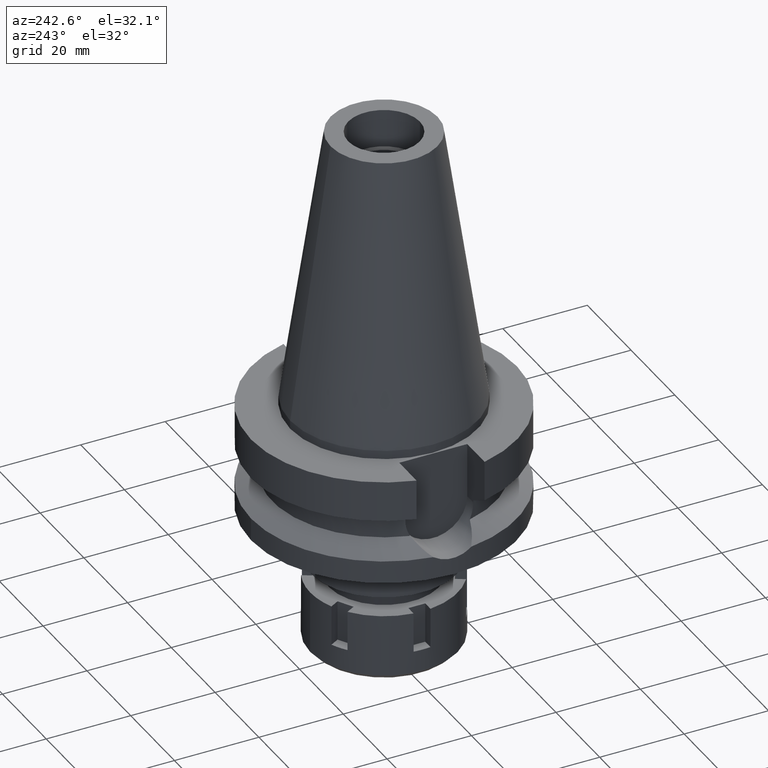
[diagram: clean part render]
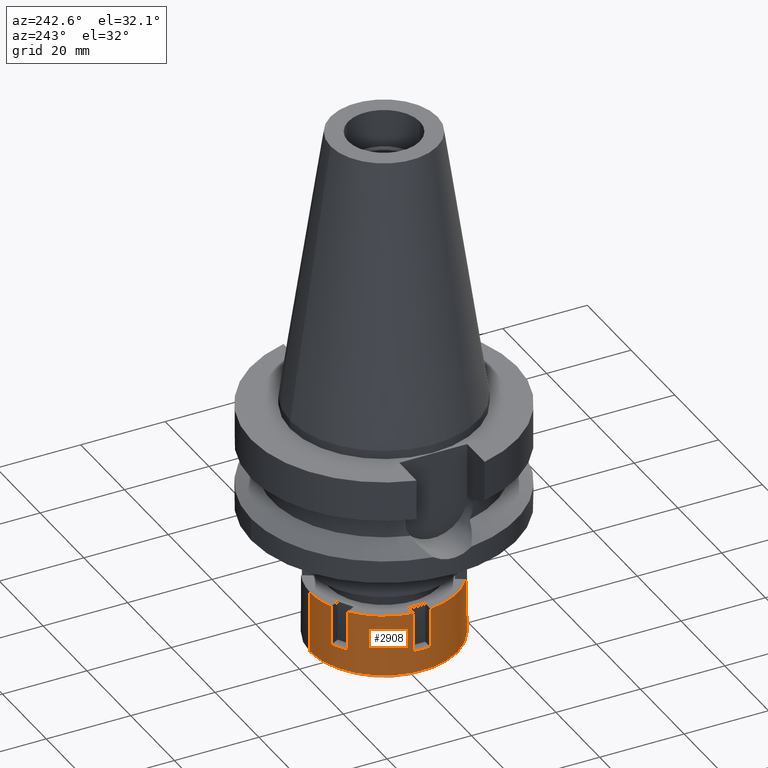
[diagram: same view with one face highlighted and labeled with its STEP entity id]
A machine part, auxiliary view. The second image highlights one B-rep face of the part: STEP entity #2908.
In plain terms, the highlighted cylindrical surface (partial cylindrical patch) has radius 17.5 mm, axis along (0, 0, -1).
Its self-contained STEP definition (entity closure, byte-faithful):
#46 = AXIS2_PLACEMENT_3D ( 'NONE', #664, #697, #3153 ) ;
#62 = EDGE_CURVE ( 'NONE', #1451, #2991, #2077, .T. ) ;
#95 = CARTESIAN_POINT ( 'NONE',  ( -17.38533865071000051, -2.000000000000000000, -9.500000000000000000 ) ) ;
#103 = AXIS2_PLACEMENT_3D ( 'NONE', #1119, #1064, #3512 ) ;
#118 = CARTESIAN_POINT ( 'NONE',  ( 0.0000000000000000000, 17.50000000000000000, -14.75000000000000000 ) ) ;
#119 = DIRECTION ( 'NONE',  ( 0.0000000000000000000, 0.0000000000000000000, -1.000000000000000000 ) ) ;
#123 = DIRECTION ( 'NONE',  ( -0.5956982933103188715, 0.8032082814234259294, 0.0000000000000000000 ) ) ;
#129 = AXIS2_PLACEMENT_3D ( 'NONE', #3566, #1118, #527 ) ;
#134 = EDGE_CURVE ( 'NONE', #627, #2840, #405, .T. ) ;
#150 = EDGE_CURVE ( 'NONE', #3398, #1169, #3445, .T. ) ;
#167 = VECTOR ( 'NONE', #2339, 1000.000000000000000 ) ;
#227 = DIRECTION ( 'NONE',  ( 0.0000000000000000000, -1.000000000000000000, 0.0000000000000000000 ) ) ;
#232 = DIRECTION ( 'NONE',  ( -0.5956982933099820299, -0.8032082814236758406, 0.0000000000000000000 ) ) ;
#243 = LINE ( 'NONE', #556, #707 ) ;
#282 = VECTOR ( 'NONE', #2305, 1000.000000000000000 ) ;
#344 = DIRECTION ( 'NONE',  ( 0.0000000000000000000, 0.0000000000000000000, 1.000000000000000000 ) ) ;
#405 = LINE ( 'NONE', #2580, #539 ) ;
#410 = CARTESIAN_POINT ( 'NONE',  ( -6.960618517790000404, -16.05614492491000078, 0.0000000000000000000 ) ) ;
#421 = VECTOR ( 'NONE', #1587, 1000.000000000000000 ) ;
#422 = EDGE_CURVE ( 'NONE', #1241, #2561, #1668, .T. ) ;
#424 = CARTESIAN_POINT ( 'NONE',  ( -6.960618517790000404, -16.05614492491000078, -9.500000000000000000 ) ) ;
#501 = EDGE_CURVE ( 'NONE', #2530, #2991, #3110, .T. ) ;
#527 = DIRECTION ( 'NONE',  ( 0.0000000000000000000, -1.000000000000000000, 0.0000000000000000000 ) ) ;
#528 = CARTESIAN_POINT ( 'NONE',  ( -17.38533865071000051, -2.000000000000000000, -9.500000000000000000 ) ) ;
#539 = VECTOR ( 'NONE', #119, 1000.000000000000000 ) ;
#556 = CARTESIAN_POINT ( 'NONE',  ( -6.960618517787000137, 16.05614492491000078, 0.0000000000000000000 ) ) ;
#558 = EDGE_CURVE ( 'NONE', #1484, #3398, #759, .T. ) ;
#570 = CARTESIAN_POINT ( 'NONE',  ( 0.0000000000000000000, 17.50000000000000000, 0.0000000000000000000 ) ) ;
#610 = CARTESIAN_POINT ( 'NONE',  ( -10.42472013293000010, -14.05614492490999901, 0.0000000000000000000 ) ) ;
#627 = VERTEX_POINT ( 'NONE', #3311 ) ;
#645 = AXIS2_PLACEMENT_3D ( 'NONE', #2694, #1593, #232 ) ;
#651 = AXIS2_PLACEMENT_3D ( 'NONE', #2362, #2109, #227 ) ;
#664 = CARTESIAN_POINT ( 'NONE',  ( 0.0000000000000000000, 0.0000000000000000000, -14.75000000000000000 ) ) ;
#697 = DIRECTION ( 'NONE',  ( 0.0000000000000000000, 0.0000000000000000000, 1.000000000000000000 ) ) ;
#707 = VECTOR ( 'NONE', #1905, 1000.000000000000000 ) ;
#759 = CIRCLE ( 'NONE', #3554, 17.49999999999999645 ) ;
#922 = EDGE_CURVE ( 'NONE', #1484, #1985, #243, .T. ) ;
#980 = EDGE_CURVE ( 'NONE', #2099, #3447, #3534, .T. ) ;
#996 = DIRECTION ( 'NONE',  ( -0.9934479228979277154, 0.1142857142857031660, 0.0000000000000000000 ) ) ;
#1006 = AXIS2_PLACEMENT_3D ( 'NONE', #1759, #2557, #1660 ) ;
#1064 = DIRECTION ( 'NONE',  ( 0.0000000000000000000, 0.0000000000000000000, -1.000000000000000000 ) ) ;
#1065 = CIRCLE ( 'NONE', #1006, 17.50000000000000711 ) ;
#1107 = VECTOR ( 'NONE', #2599, 1000.000000000000000 ) ;
#1111 = EDGE_LOOP ( 'NONE', ( #3050, #1186, #1974, #3367, #1764, #2382, #2439, #1382, #2121, #2658, #2760, #3071, #2915, #1174, #2301, #1376 ) ) ;
#1118 = DIRECTION ( 'NONE',  ( 0.0000000000000000000, 0.0000000000000000000, -1.000000000000000000 ) ) ;
#1119 = CARTESIAN_POINT ( 'NONE',  ( 0.0000000000000000000, 0.0000000000000000000, -9.500000000000000000 ) ) ;
#1169 = VERTEX_POINT ( 'NONE', #118 ) ;
#1174 = ORIENTED_EDGE ( 'NONE', *, *, #1277, .T. ) ;
#1183 = EDGE_CURVE ( 'NONE', #3348, #2647, #3117, .T. ) ;
#1186 = ORIENTED_EDGE ( 'NONE', *, *, #558, .T. ) ;
#1239 = CARTESIAN_POINT ( 'NONE',  ( 0.0000000000000000000, 17.50000000000000000, 0.0000000000000000000 ) ) ;
#1241 = VERTEX_POINT ( 'NONE', #1535 ) ;
#1260 = DIRECTION ( 'NONE',  ( 0.0000000000000000000, 0.0000000000000000000, -1.000000000000000000 ) ) ;
#1277 = EDGE_CURVE ( 'NONE', #627, #2561, #1441, .T. ) ;
#1361 = EDGE_CURVE ( 'NONE', #3348, #1530, #1555, .T. ) ;
#1376 = ORIENTED_EDGE ( 'NONE', *, *, #2660, .T. ) ;
#1382 = ORIENTED_EDGE ( 'NONE', *, *, #1361, .T. ) ;
#1441 = CIRCLE ( 'NONE', #1774, 17.50000000000000711 ) ;
#1451 = VERTEX_POINT ( 'NONE', #528 ) ;
#1473 = CARTESIAN_POINT ( 'NONE',  ( 0.0000000000000000000, 0.0000000000000000000, 0.0000000000000000000 ) ) ;
#1475 = CARTESIAN_POINT ( 'NONE',  ( -6.960618517786000048, 16.05614492491000078, -9.500000000000000000 ) ) ;
#1484 = VERTEX_POINT ( 'NONE', #2175 ) ;
#1511 = CIRCLE ( 'NONE', #2469, 17.50000000000000355 ) ;
#1530 = VERTEX_POINT ( 'NONE', #2249 ) ;
#1535 = CARTESIAN_POINT ( 'NONE',  ( -10.42472013293000010, 14.05614492490999901, -9.500000000000000000 ) ) ;
#1555 = CIRCLE ( 'NONE', #103, 17.49999999999999645 ) ;
#1587 = DIRECTION ( 'NONE',  ( 0.0000000000000000000, 0.0000000000000000000, -1.000000000000000000 ) ) ;
#1593 = DIRECTION ( 'NONE',  ( 0.0000000000000000000, 0.0000000000000000000, -1.000000000000000000 ) ) ;
#1660 = DIRECTION ( 'NONE',  ( -0.9934479228979277154, -0.1142857142857031660, 0.0000000000000000000 ) ) ;
#1668 = LINE ( 'NONE', #2827, #167 ) ;
#1672 = CARTESIAN_POINT ( 'NONE',  ( 0.0000000000000000000, -17.50000000000000000, -14.75000000000000000 ) ) ;
#1701 = DIRECTION ( 'NONE',  ( -0.3977496295877935850, 0.9174939957093850573, 0.0000000000000000000 ) ) ;
#1759 = CARTESIAN_POINT ( 'NONE',  ( 0.0000000000000000000, 0.0000000000000000000, -9.500000000000000000 ) ) ;
#1764 = ORIENTED_EDGE ( 'NONE', *, *, #980, .F. ) ;
#1768 = CARTESIAN_POINT ( 'NONE',  ( 0.0000000000000000000, -17.50000000000000000, 0.0000000000000000000 ) ) ;
#1774 = AXIS2_PLACEMENT_3D ( 'NONE', #3226, #3462, #996 ) ;
#1804 = LINE ( 'NONE', #2623, #3049 ) ;
#1905 = DIRECTION ( 'NONE',  ( 0.0000000000000000000, 1.047115610593999980E-14, -1.000000000000000000 ) ) ;
#1974 = ORIENTED_EDGE ( 'NONE', *, *, #150, .T. ) ;
#1985 = VERTEX_POINT ( 'NONE', #1475 ) ;
#2030 = CARTESIAN_POINT ( 'NONE',  ( -17.38533865071000051, -2.000000000000000000, 0.0000000000000000000 ) ) ;
#2077 = LINE ( 'NONE', #95, #1107 ) ;
#2099 = VERTEX_POINT ( 'NONE', #1768 ) ;
#2106 = EDGE_CURVE ( 'NONE', #2530, #1530, #1804, .T. ) ;
#2109 = DIRECTION ( 'NONE',  ( 0.0000000000000000000, 0.0000000000000000000, -1.000000000000000000 ) ) ;
#2121 = ORIENTED_EDGE ( 'NONE', *, *, #2106, .F. ) ;
#2175 = CARTESIAN_POINT ( 'NONE',  ( -6.960618517787000137, 16.05614492491000078, 0.0000000000000000000 ) ) ;
#2178 = CARTESIAN_POINT ( 'NONE',  ( 0.0000000000000000000, -17.50000000000000000, 0.0000000000000000000 ) ) ;
#2235 = CARTESIAN_POINT ( 'NONE',  ( -6.960618517789000315, -16.05614492491000078, -9.500000000000000000 ) ) ;
#2249 = CARTESIAN_POINT ( 'NONE',  ( -10.42472013293000010, -14.05614492490999901, -9.500000000000000000 ) ) ;
#2283 = VECTOR ( 'NONE', #344, 1000.000000000000000 ) ;
#2297 = CARTESIAN_POINT ( 'NONE',  ( 0.0000000000000000000, 0.0000000000000000000, -9.500000000000000000 ) ) ;
#2301 = ORIENTED_EDGE ( 'NONE', *, *, #422, .F. ) ;
#2305 = DIRECTION ( 'NONE',  ( 0.0000000000000000000, 0.0000000000000000000, -1.000000000000000000 ) ) ;
#2339 = DIRECTION ( 'NONE',  ( 1.084512596686000179E-14, -1.869849304632000184E-14, 1.000000000000000000 ) ) ;
#2362 = CARTESIAN_POINT ( 'NONE',  ( 0.0000000000000000000, 0.0000000000000000000, 0.0000000000000000000 ) ) ;
#2382 = ORIENTED_EDGE ( 'NONE', *, *, #3391, .T. ) ;
#2439 = ORIENTED_EDGE ( 'NONE', *, *, #1183, .F. ) ;
#2469 = AXIS2_PLACEMENT_3D ( 'NONE', #2297, #1260, #123 ) ;
#2530 = VERTEX_POINT ( 'NONE', #610 ) ;
#2557 = DIRECTION ( 'NONE',  ( 0.0000000000000000000, 0.0000000000000000000, -1.000000000000000000 ) ) ;
#2561 = VERTEX_POINT ( 'NONE', #3098 ) ;
#2580 = CARTESIAN_POINT ( 'NONE',  ( -17.38533865071000051, 2.000000000000000000, 0.0000000000000000000 ) ) ;
#2599 = DIRECTION ( 'NONE',  ( 0.0000000000000000000, 0.0000000000000000000, 1.000000000000000000 ) ) ;
#2623 = CARTESIAN_POINT ( 'NONE',  ( -10.42472013293000010, -14.05614492490999901, 0.0000000000000000000 ) ) ;
#2641 = CYLINDRICAL_SURFACE ( 'NONE', #651, 17.50000000000000000 ) ;
#2647 = VERTEX_POINT ( 'NONE', #410 ) ;
#2658 = ORIENTED_EDGE ( 'NONE', *, *, #501, .T. ) ;
#2660 = EDGE_CURVE ( 'NONE', #1241, #1985, #1511, .T. ) ;
#2694 = CARTESIAN_POINT ( 'NONE',  ( 0.0000000000000000000, 0.0000000000000000000, 0.0000000000000000000 ) ) ;
#2750 = EDGE_CURVE ( 'NONE', #1169, #3447, #3502, .T. ) ;
#2760 = ORIENTED_EDGE ( 'NONE', *, *, #62, .F. ) ;
#2827 = CARTESIAN_POINT ( 'NONE',  ( -10.42472013293000010, 14.05614492490999901, -9.500000000000000000 ) ) ;
#2840 = VERTEX_POINT ( 'NONE', #3250 ) ;
#2908 = ADVANCED_FACE ( 'NONE', ( #2984 ), #2641, .T. ) ;
#2915 = ORIENTED_EDGE ( 'NONE', *, *, #134, .F. ) ;
#2936 = DIRECTION ( 'NONE',  ( 1.346291499335000115E-14, 2.318613137742999776E-14, -1.000000000000000000 ) ) ;
#2984 = FACE_OUTER_BOUND ( 'NONE', #1111, .T. ) ;
#2991 = VERTEX_POINT ( 'NONE', #2030 ) ;
#3027 = DIRECTION ( 'NONE',  ( 0.0000000000000000000, 0.0000000000000000000, -1.000000000000000000 ) ) ;
#3049 = VECTOR ( 'NONE', #2936, 1000.000000000000000 ) ;
#3050 = ORIENTED_EDGE ( 'NONE', *, *, #922, .F. ) ;
#3071 = ORIENTED_EDGE ( 'NONE', *, *, #3112, .T. ) ;
#3098 = CARTESIAN_POINT ( 'NONE',  ( -10.42472013293000010, 14.05614492490999901, 0.0000000000000000000 ) ) ;
#3110 = CIRCLE ( 'NONE', #645, 17.50000000000000355 ) ;
#3112 = EDGE_CURVE ( 'NONE', #1451, #2840, #1065, .T. ) ;
#3117 = LINE ( 'NONE', #2235, #2283 ) ;
#3153 = DIRECTION ( 'NONE',  ( 0.0000000000000000000, 1.000000000000000000, 0.0000000000000000000 ) ) ;
#3226 = CARTESIAN_POINT ( 'NONE',  ( 0.0000000000000000000, 0.0000000000000000000, 0.0000000000000000000 ) ) ;
#3250 = CARTESIAN_POINT ( 'NONE',  ( -17.38533865071000051, 2.000000000000000000, -9.500000000000000000 ) ) ;
#3311 = CARTESIAN_POINT ( 'NONE',  ( -17.38533865071000051, 2.000000000000000000, 0.0000000000000000000 ) ) ;
#3348 = VERTEX_POINT ( 'NONE', #424 ) ;
#3367 = ORIENTED_EDGE ( 'NONE', *, *, #2750, .T. ) ;
#3391 = EDGE_CURVE ( 'NONE', #2099, #2647, #3463, .T. ) ;
#3398 = VERTEX_POINT ( 'NONE', #570 ) ;
#3445 = LINE ( 'NONE', #1239, #282 ) ;
#3447 = VERTEX_POINT ( 'NONE', #1672 ) ;
#3462 = DIRECTION ( 'NONE',  ( 0.0000000000000000000, 0.0000000000000000000, -1.000000000000000000 ) ) ;
#3463 = CIRCLE ( 'NONE', #129, 17.50000000000000000 ) ;
#3502 = CIRCLE ( 'NONE', #46, 17.50000000000000000 ) ;
#3512 = DIRECTION ( 'NONE',  ( -0.3977496295879985877, -0.9174939957092961285, 0.0000000000000000000 ) ) ;
#3534 = LINE ( 'NONE', #2178, #421 ) ;
#3554 = AXIS2_PLACEMENT_3D ( 'NONE', #1473, #3027, #1701 ) ;
#3566 = CARTESIAN_POINT ( 'NONE',  ( 0.0000000000000000000, 0.0000000000000000000, 0.0000000000000000000 ) ) ;